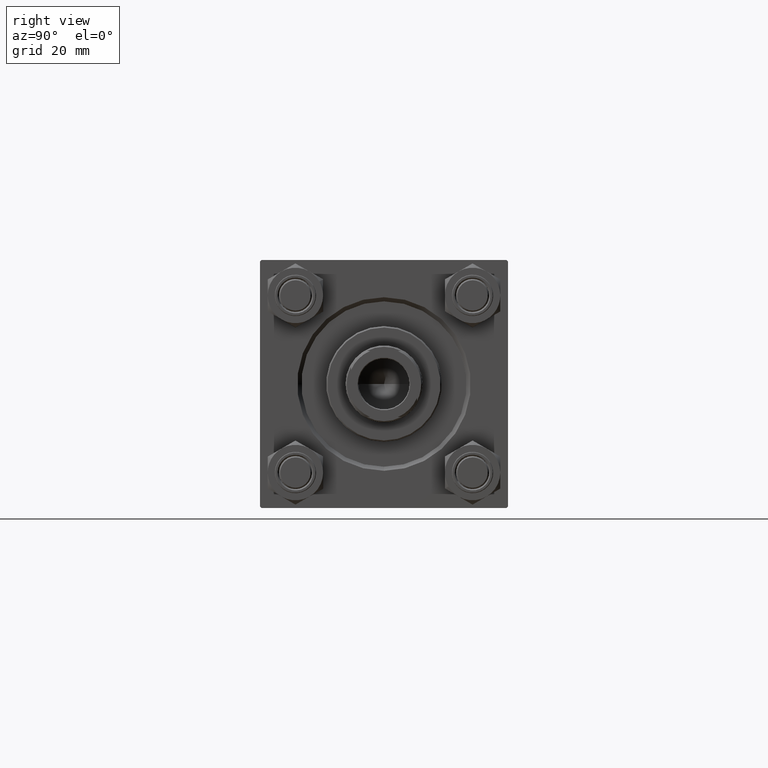
[diagram: clean part render]
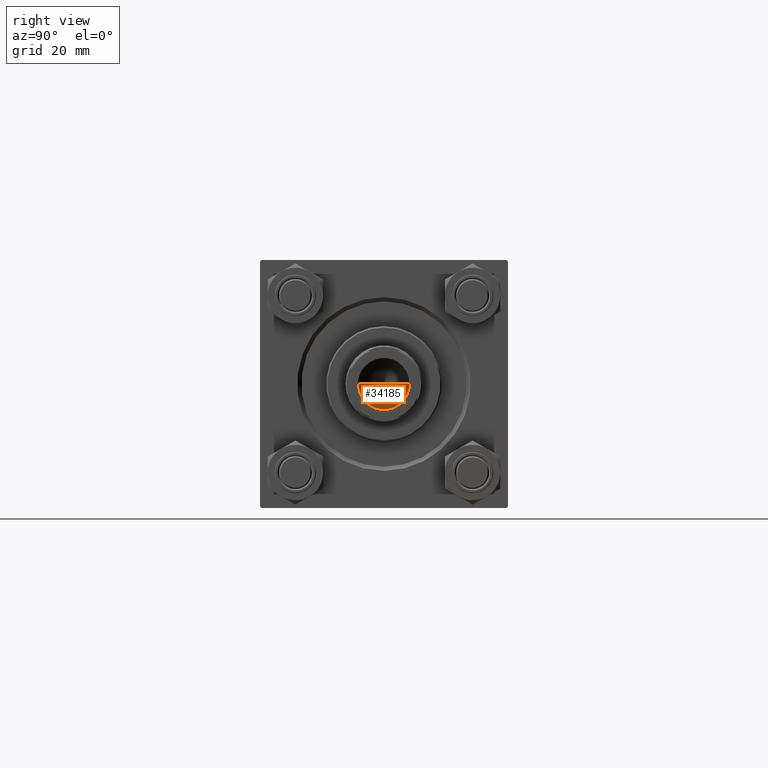
[diagram: same view with one face highlighted and labeled with its STEP entity id]
A machine part, right view. The second image highlights one B-rep face of the part: STEP entity #34185.
In plain terms, the highlighted conical surface has half-angle 59 deg.
Its self-contained STEP definition (entity closure, byte-faithful):
#1057 = DIRECTION ( 'NONE',  ( 1.000000000000000000, 0.000000000000000000, 0.000000000000000000 ) ) ;
#3218 = CARTESIAN_POINT ( 'NONE',  ( 0.000000000000000000, 0.000000000000000000, 114.9999999999999858 ) ) ;
#3694 = AXIS2_PLACEMENT_3D ( 'NONE', #3218, #25647, #49059 ) ;
#5856 = VERTEX_POINT ( 'NONE', #22016 ) ;
#6118 = CIRCLE ( 'NONE', #3694, 9.249999999999992895 ) ;
#7261 = LINE ( 'NONE', #18610, #41045 ) ;
#9861 = CARTESIAN_POINT ( 'NONE',  ( 9.249999999999992895, 0.000000000000000000, 114.9999999999999858 ) ) ;
#10803 = DIRECTION ( 'NONE',  ( 0.8571673007021117785, 0.000000000000000000, 0.5150380749100550437 ) ) ;
#12930 = EDGE_LOOP ( 'NONE', ( #48654, #28246, #16248 ) ) ;
#13322 = EDGE_CURVE ( 'NONE', #44297, #5856, #37796, .T. ) ;
#16248 = ORIENTED_EDGE ( 'NONE', *, *, #21902, .T. ) ;
#18610 = CARTESIAN_POINT ( 'NONE',  ( 9.249999999999992895, 0.000000000000000000, 114.9999999999999858 ) ) ;
#20209 = FACE_OUTER_BOUND ( 'NONE', #12930, .T. ) ;
#21812 = AXIS2_PLACEMENT_3D ( 'NONE', #31799, #35573, #1057 ) ;
#21829 = CARTESIAN_POINT ( 'NONE',  ( -9.769621978240258809E-15, 0.000000000000000000, 109.4420392739950501 ) ) ;
#21902 = EDGE_CURVE ( 'NONE', #45982, #5856, #6118, .T. ) ;
#22016 = CARTESIAN_POINT ( 'NONE',  ( -9.249999999999992895, 1.132798289211300712E-15, 114.9999999999999858 ) ) ;
#25028 = CARTESIAN_POINT ( 'NONE',  ( -9.249999999999992895, 1.132798289211300712E-15, 114.9999999999999858 ) ) ;
#25647 = DIRECTION ( 'NONE',  ( -0.000000000000000000, -0.000000000000000000, 1.000000000000000000 ) ) ;
#28246 = ORIENTED_EDGE ( 'NONE', *, *, #35394, .T. ) ;
#29036 = CONICAL_SURFACE ( 'NONE', #21812, 9.249999999999992895, 1.029744258676653423 ) ;
#31799 = CARTESIAN_POINT ( 'NONE',  ( 0.000000000000000000, 0.000000000000000000, 114.9999999999999858 ) ) ;
#34185 = ADVANCED_FACE ( 'NONE', ( #20209 ), #29036, .F. ) ;
#35394 = EDGE_CURVE ( 'NONE', #44297, #45982, #7261, .T. ) ;
#35573 = DIRECTION ( 'NONE',  ( -0.000000000000000000, -0.000000000000000000, 1.000000000000000000 ) ) ;
#36845 = DIRECTION ( 'NONE',  ( -0.8571673007021117785, 1.049727191138617956E-16, 0.5150380749100550437 ) ) ;
#37796 = LINE ( 'NONE', #25028, #37948 ) ;
#37948 = VECTOR ( 'NONE', #36845, 1000.000000000000000 ) ;
#41045 = VECTOR ( 'NONE', #10803, 1000.000000000000000 ) ;
#44297 = VERTEX_POINT ( 'NONE', #21829 ) ;
#45982 = VERTEX_POINT ( 'NONE', #9861 ) ;
#48654 = ORIENTED_EDGE ( 'NONE', *, *, #13322, .F. ) ;
#49059 = DIRECTION ( 'NONE',  ( 1.000000000000000000, 0.000000000000000000, 0.000000000000000000 ) ) ;